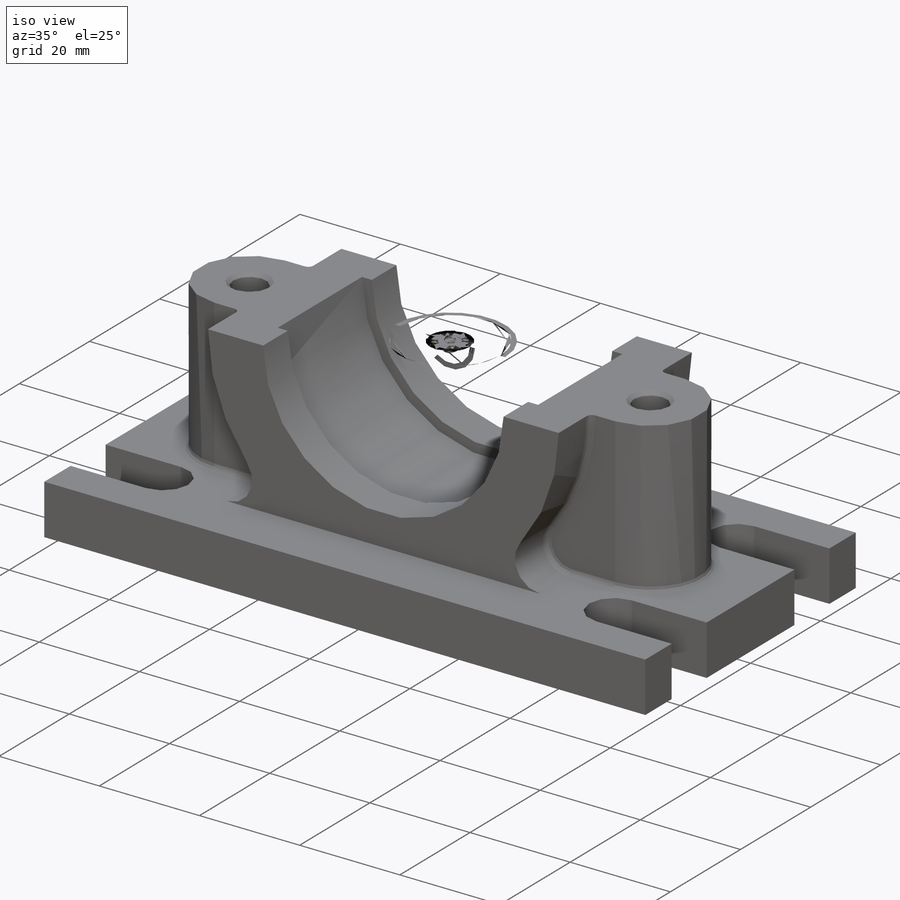
[diagram: iso view]
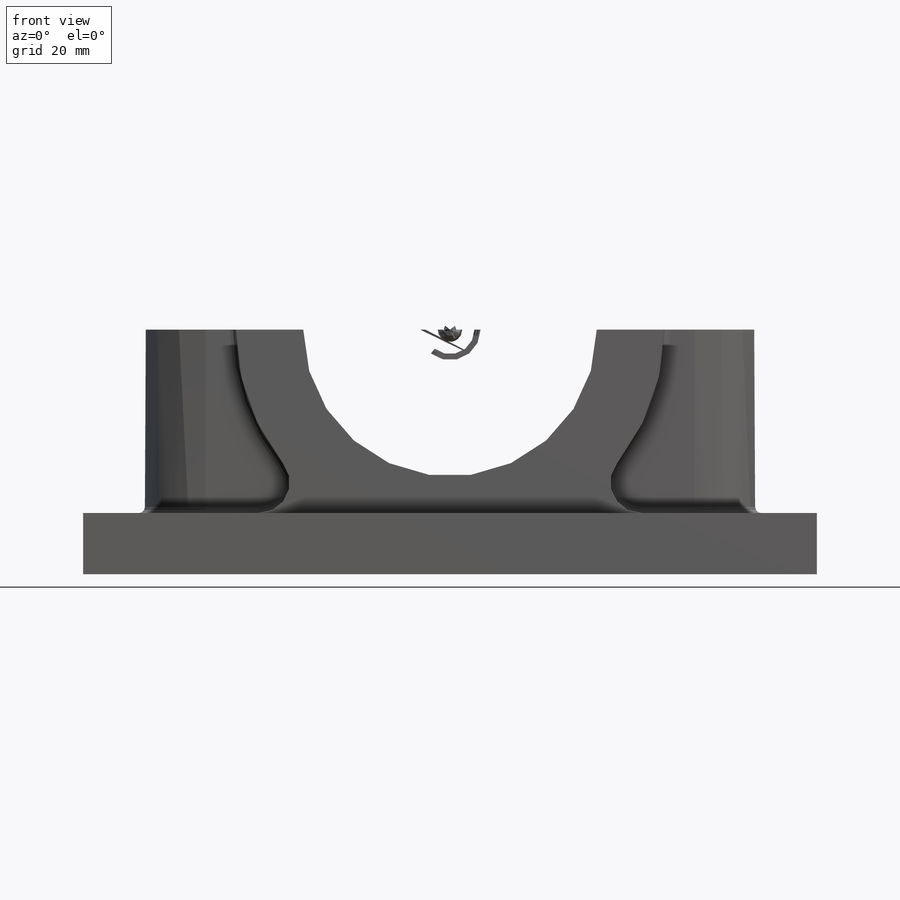
[diagram: front view]
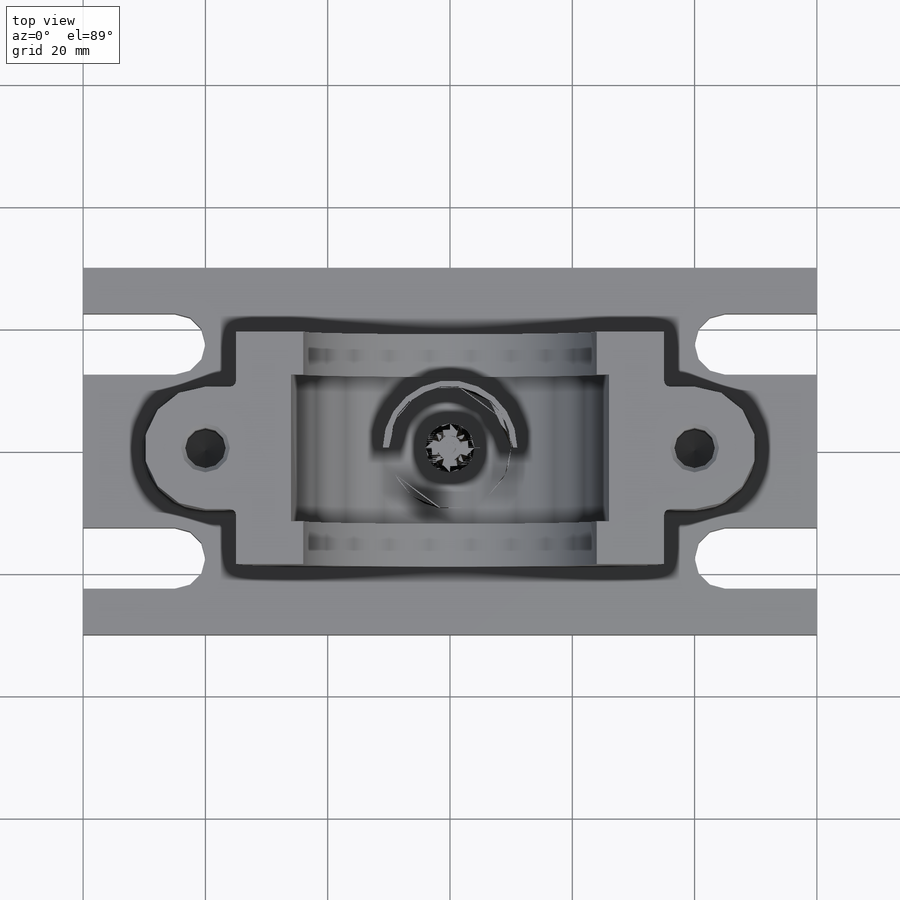
[diagram: top view]
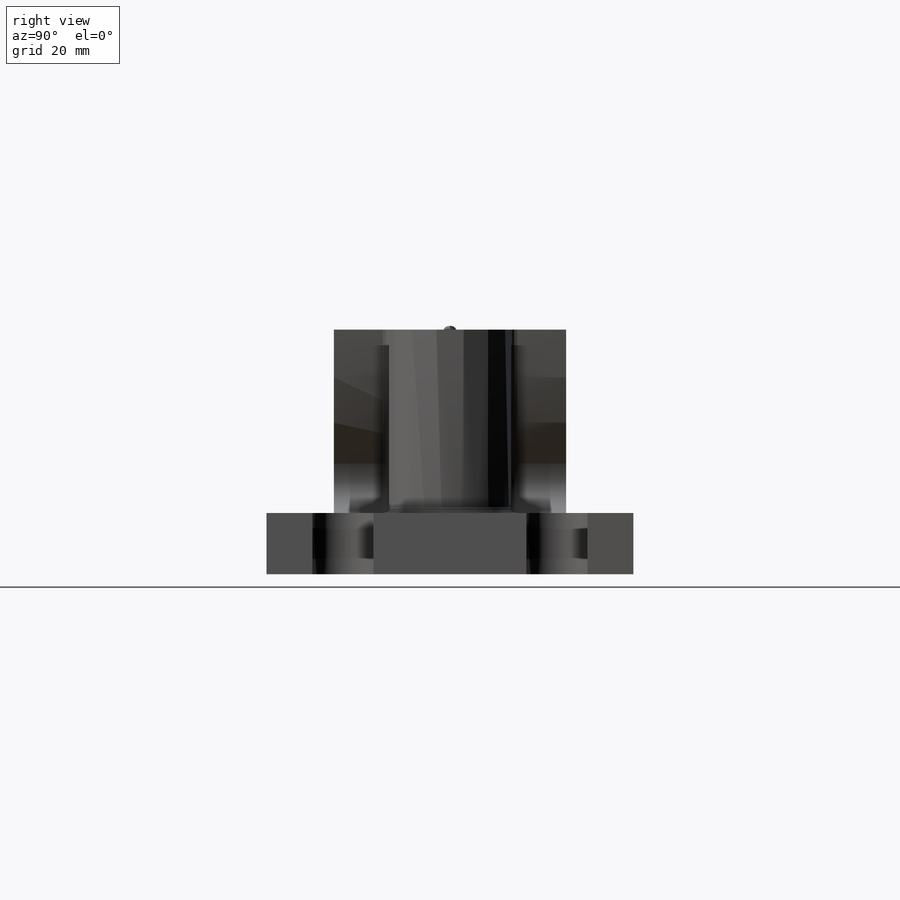
[diagram: right view]
SOLIDWORKS PART (.sldprt)
format: sldprt  version: not decoded by parser v0  size: 502,272 bytes
history: native  units: mm
features: sketch x8, cut_extrude x5, fillet x4, plane x3, extrude x3, mirror x3, thread x2, chamfer x2, material x1 (+9 scaffold rows collapsed)
feature tree (40):
  scaffold x9  (default folders/planes/origin — collapsed)
  material  "Сталь"
  plane  "Спереди"
  plane  "Сверху"
  plane  "Справа"
  sketch  "Эскиз1"  dims[D1=48.0mm D2=70.0mm D3=52.0mm]
  extrude  "Бобышка-Вытянуть2"  Depth=38mm
  sketch  "Эскиз2"  dims[c1.D1=20.0mm c1.D2=40.0mm c2.D1=40.0mm]
  extrude  "Бобышка-Вытянуть5"  Depth=40mm
  cut_extrude  "Вырез-Вытянуть1"  [1 undecoded]
  sketch  "Эскиз1<4>"
  sketch  "Эскиз4"  dims[D1=120.0mm D2=60.0mm]
  extrude  "Бобышка-Вытянуть6"  Depth=10mm
  fillet  "Скругление2"  Radius=5mm
  sketch  "Эскиз5"  dims[D1=10.0mm D2=15.0mm D3=35.0mm]
  cut_extrude  "Вырез-Вытянуть2"  [1 undecoded]
  mirror  "Зеркальное отражение1"
  mirror  "Зеркальное отражение2"
  cut_extrude  "Вырез-Вытянуть3"  [1 undecoded]
  sketch  "Эскиз1<5>"  dims[D1=24.0mm]
  sketch  "Эскиз6"  dims[D2=25.0mm D1=10.0mm]
  cut_extrude  "Вырез-Вытянуть4"  Depth=24mm
  mirror  "Зеркальное отражение3"
  fillet  "Скругление3"  Radius=4mm
  fillet  "Скругление4"  Radius=2mm
  sketch  "Эскиз7"  dims[D1=6.619mm]
  cut_extrude  "Вырез-Вытянуть5"  [1 undecoded]
  thread  "Условное изображение резьбы1"  Diameter=8mm  [1 undecoded]
  thread  "Условное изображение резьбы2"  Diameter=8mm  [1 undecoded]
  fillet  "Скругление5"  Radius=1mm
  chamfer  "Фаска1"  Distance=3.3mm Angle=45deg
  chamfer  "Фаска2"  Distance=0.6905mm Angle=45deg
decode coverage: 19 of 27 modeling features carry decoded parameters
note: 6 parameter values undecoded
summary: no parameter record found for 4 features
note: suppression state not decoded; provenance and decode notes live in map.json
